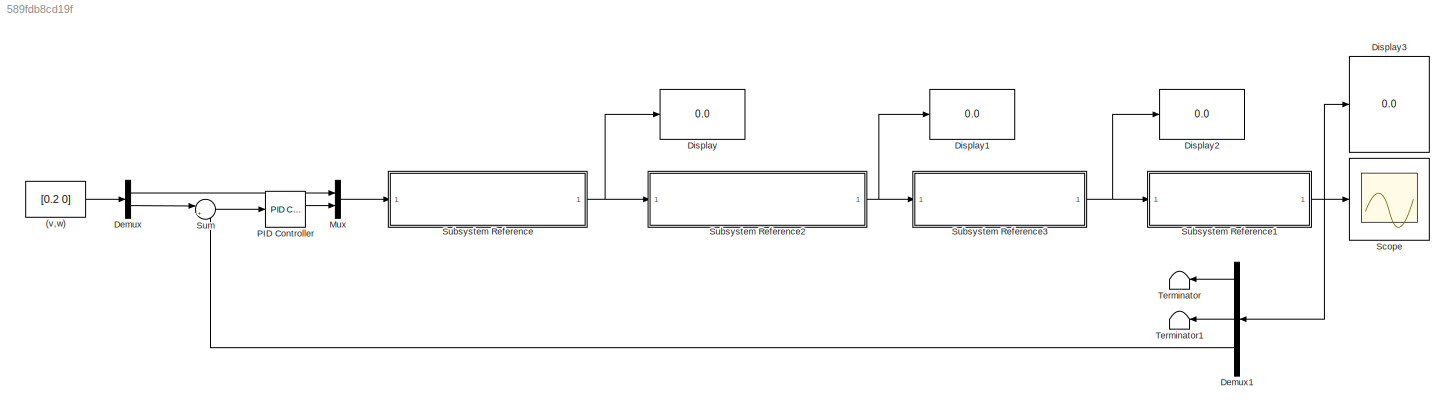
MODEL slx_589fdb8cd19f
KIND model
CONFIG AbsTol = auto
CONFIG EnableMultiTasking = on
CONFIG FixedStep = auto
CONFIG MaxStep = auto
CONFIG MinStep = auto
CONFIG RelTol = 1e-3
CONFIG SampleTimeConstraint = Unconstrained
CONFIG SolverName = FixedStepDiscrete
CONFIG StartTime = 0.0
CONFIG StopTime = 10.0
WORKSPACE source: mxarray member
WORKSPACE d = 0.18
BLOCK [Constant] (v,w)
  Value = [0.2 0]
BLOCK [Demux] Demux
  Outputs = 2
BLOCK [Demux] Demux1
  Outputs = 3
BLOCK [Display] Display
  Decimation = 1
BLOCK [Display] Display1
  Decimation = 1
BLOCK [Display] Display2
  Decimation = 1
BLOCK [Display] Display3
  Decimation = 1
BLOCK [Mux] Mux
  DisplayOption = bar
  Inputs = 2
BLOCK [Reference] PID Controller  REF=slpidlib/PID Controller
  LibrarySourceBlock = simulink/Continuous/PID Controller
  SourceBlock = slpidlib/PID Controller
  SourceType = PID 1dof
BLOCK [Scope] Scope
  Floating = off
  NumInputPorts = 1
  ScopeSpecificationString = Simulink.scopes.TimeScopeBlockCfg('CurrentConfiguration', extmgr.ConfigurationSet(extmgr.Configuration('Core','General UI',true),extmgr.Configuration('Core','Source UI',true),extmgr.Configuration('Sources','WiredSimulink',true),extmgr.Configuration('Visuals','Time Domain',true,'SerializedDisplays',{struct('MinYLimReal','-0.25276','MaxYLimReal','2.21174','YLabelReal','','MinYLimMag','0.00000','MaxY...<+1390ch>
BLOCK [SubSystem] Subsystem Reference
  ReferencedSubsystem = MyPieroMCI
BLOCK [SubSystem] Subsystem Reference1
  ReferencedSubsystem = Odometria
BLOCK [SubSystem] Subsystem Reference2
  ReferencedSubsystem = MyPieroControlVel
BLOCK [SubSystem] Subsystem Reference3
  ReferencedSubsystem = MyPieroMCD
BLOCK [Sum] Sum
  Inputs = |+-
BLOCK [Terminator] Terminator
BLOCK [Terminator] Terminator1
LINE (v,w):1 -> Demux:1
LINE Demux1:1 -> Terminator:1
LINE Demux1:2 -> Terminator1:1
LINE Demux1:3 -> Sum:2
LINE Demux:1 -> Mux:1
LINE Demux:2 -> Sum:1
LINE Mux:1 -> Subsystem Reference:1
LINE PID Controller:1 -> Mux:2
NET Subsystem Reference1:1 -> Demux1:1, Display3:1, Scope:1
NET Subsystem Reference2:1 -> Display1:1, Subsystem Reference3:1
NET Subsystem Reference3:1 -> Display2:1, Subsystem Reference1:1
NET Subsystem Reference:1 -> Display:1, Subsystem Reference2:1
LINE Sum:1 -> PID Controller:1
note: NET lines group one-source signal fan-out (src -> all destinations, sorted); 1:1 wires keep LINE
